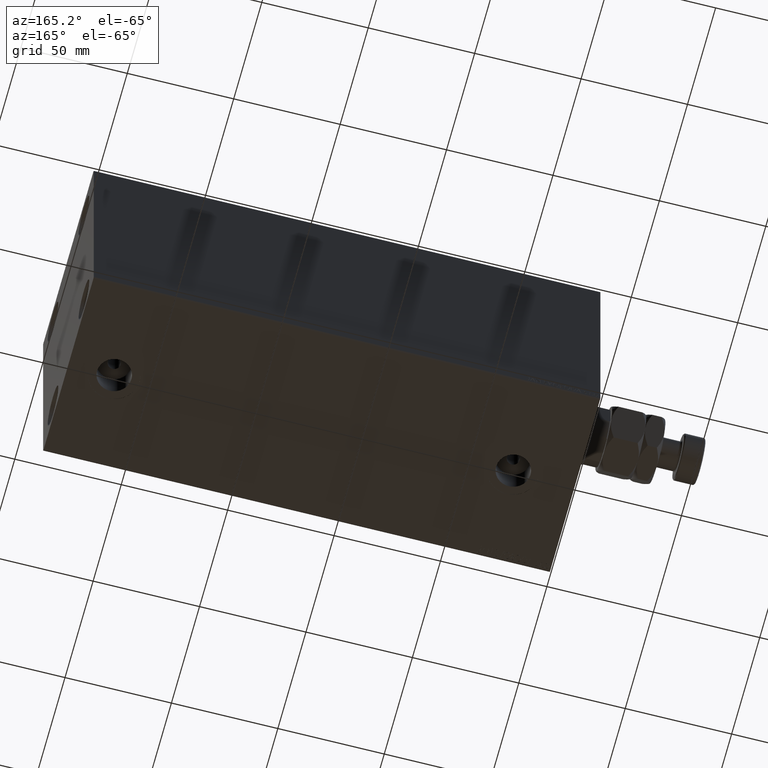
[diagram: clean part render]
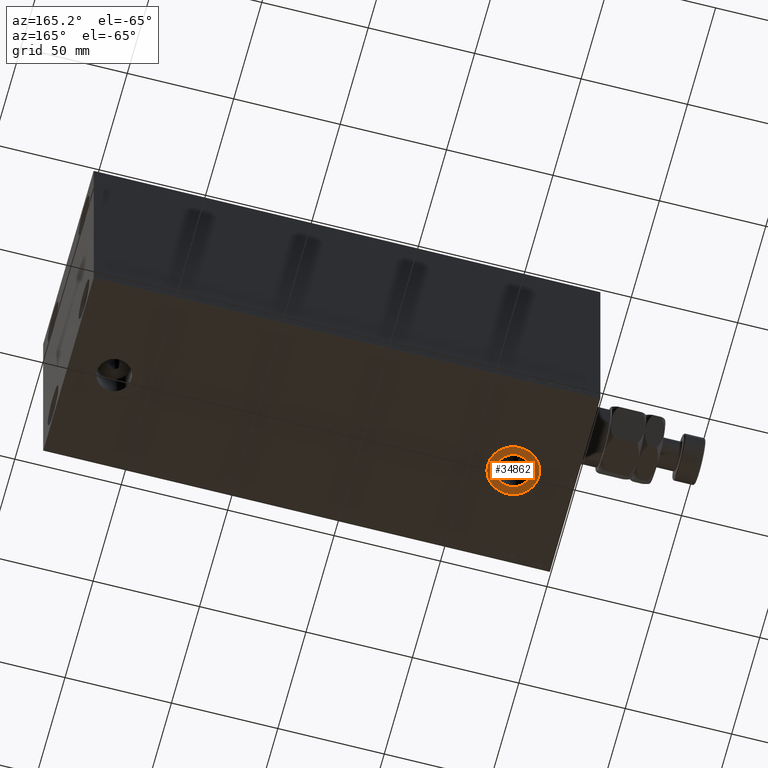
[diagram: same view with one face highlighted and labeled with its STEP entity id]
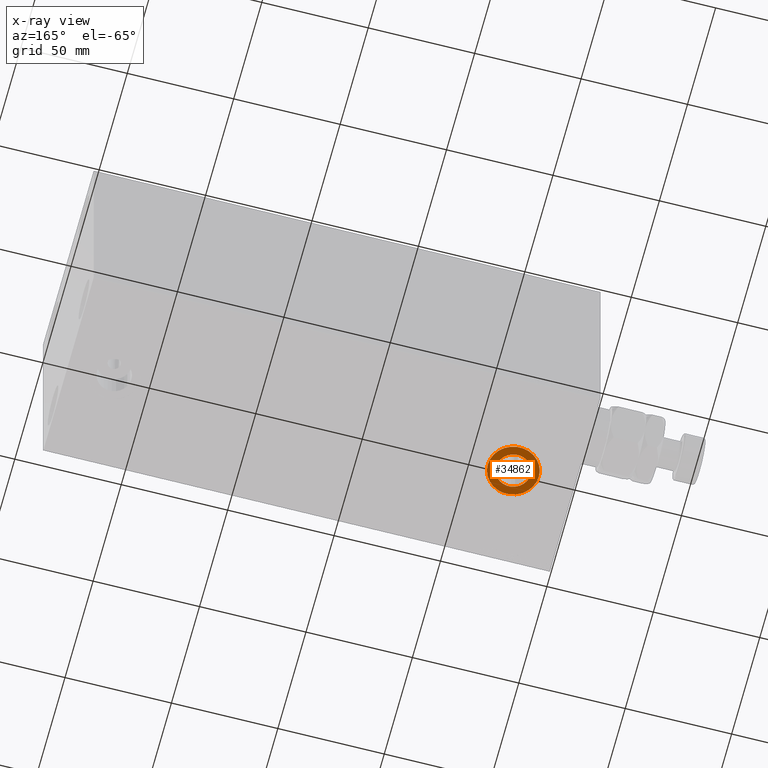
[diagram: x-ray of the same camera — body ghosted, the highlighted face saturated]
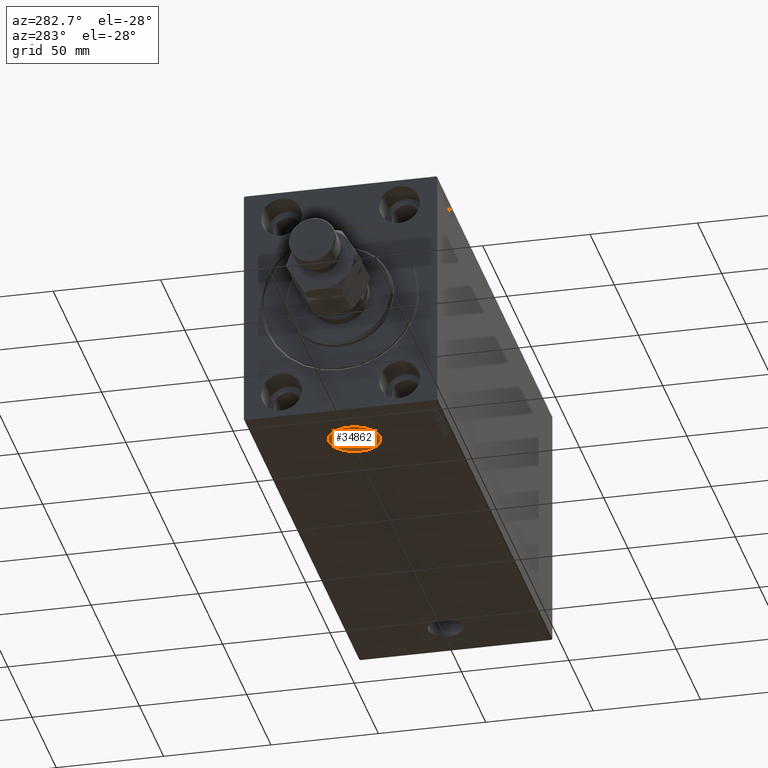
[diagram: same view with one face highlighted and labeled with its STEP entity id]
A machine part, auxiliary view. The second image highlights one B-rep face of the part: STEP entity #34862.
The next image is the same camera in x-ray: the body ghosted, the highlighted face saturated — about 0% of this face is hidden behind the body in this view.
A second angle (auxiliary view) of the same face is appended — the face is thin or edge-on in the first view.
In plain terms, the highlighted planar face has unit normal (0, 0, -1).
Its self-contained STEP definition (entity closure, byte-faithful):
#1558 = CIRCLE ( 'NONE', #40992, 12.00000000000000000 ) ;
#3092 = CARTESIAN_POINT ( 'NONE',  ( 37.08500000000000085, -5.206306226251895314E-15, -57.40000000000000568 ) ) ;
#4489 = VERTEX_POINT ( 'NONE', #20947 ) ;
#5388 = EDGE_LOOP ( 'NONE', ( #17375, #39686 ) ) ;
#7840 = CARTESIAN_POINT ( 'NONE',  ( 29.00000000000000000, -6.196433163362529681E-15, -57.40000000000000568 ) ) ;
#8343 = PLANE ( 'NONE',  #9758 ) ;
#9277 = DIRECTION ( 'NONE',  ( 0.000000000000000000, 0.000000000000000000, -1.000000000000000000 ) ) ;
#9758 = AXIS2_PLACEMENT_3D ( 'NONE', #46074, #9277, #17076 ) ;
#11455 = EDGE_CURVE ( 'NONE', #30275, #42326, #33925, .T. ) ;
#12148 = AXIS2_PLACEMENT_3D ( 'NONE', #7840, #39673, #43474 ) ;
#13979 = CARTESIAN_POINT ( 'NONE',  ( 17.00000000000000000, -6.196433163362529681E-15, -57.40000000000000568 ) ) ;
#14703 = DIRECTION ( 'NONE',  ( 0.000000000000000000, 0.000000000000000000, -1.000000000000000000 ) ) ;
#14811 = VERTEX_POINT ( 'NONE', #13979 ) ;
#15816 = ORIENTED_EDGE ( 'NONE', *, *, #11455, .F. ) ;
#17076 = DIRECTION ( 'NONE',  ( -1.000000000000000000, 0.000000000000000000, -0.000000000000000000 ) ) ;
#17375 = ORIENTED_EDGE ( 'NONE', *, *, #18986, .T. ) ;
#17386 = EDGE_LOOP ( 'NONE', ( #15816, #26313 ) ) ;
#18986 = EDGE_CURVE ( 'NONE', #14811, #4489, #46285, .T. ) ;
#19668 = DIRECTION ( 'NONE',  ( -1.000000000000000000, 0.000000000000000000, 0.000000000000000000 ) ) ;
#20947 = CARTESIAN_POINT ( 'NONE',  ( 41.00000000000000711, -4.726857004385706325E-15, -57.40000000000000568 ) ) ;
#21021 = CARTESIAN_POINT ( 'NONE',  ( 20.91500000000000270, -6.196433163362529681E-15, -57.40000000000000568 ) ) ;
#22987 = DIRECTION ( 'NONE',  ( 0.000000000000000000, 0.000000000000000000, -1.000000000000000000 ) ) ;
#23236 = EDGE_CURVE ( 'NONE', #4489, #14811, #1558, .T. ) ;
#24353 = CIRCLE ( 'NONE', #26744, 8.084999999999999076 ) ;
#26313 = ORIENTED_EDGE ( 'NONE', *, *, #45351, .F. ) ;
#26744 = AXIS2_PLACEMENT_3D ( 'NONE', #43894, #22987, #33189 ) ;
#26800 = DIRECTION ( 'NONE',  ( 0.000000000000000000, 0.000000000000000000, -1.000000000000000000 ) ) ;
#29409 = CARTESIAN_POINT ( 'NONE',  ( 29.00000000000000000, -6.196433163362529681E-15, -57.40000000000000568 ) ) ;
#30275 = VERTEX_POINT ( 'NONE', #21021 ) ;
#30882 = AXIS2_PLACEMENT_3D ( 'NONE', #43507, #26800, #19668 ) ;
#33189 = DIRECTION ( 'NONE',  ( -1.000000000000000000, 0.000000000000000000, 0.000000000000000000 ) ) ;
#33504 = FACE_OUTER_BOUND ( 'NONE', #5388, .T. ) ;
#33925 = CIRCLE ( 'NONE', #30882, 8.084999999999999076 ) ;
#34862 = ADVANCED_FACE ( 'NONE', ( #44209, #33504 ), #8343, .T. ) ;
#36308 = DIRECTION ( 'NONE',  ( -1.000000000000000000, 0.000000000000000000, 0.000000000000000000 ) ) ;
#39673 = DIRECTION ( 'NONE',  ( 0.000000000000000000, 0.000000000000000000, -1.000000000000000000 ) ) ;
#39686 = ORIENTED_EDGE ( 'NONE', *, *, #23236, .T. ) ;
#40992 = AXIS2_PLACEMENT_3D ( 'NONE', #29409, #14703, #36308 ) ;
#42326 = VERTEX_POINT ( 'NONE', #3092 ) ;
#43474 = DIRECTION ( 'NONE',  ( -1.000000000000000000, 0.000000000000000000, 0.000000000000000000 ) ) ;
#43507 = CARTESIAN_POINT ( 'NONE',  ( 29.00000000000000000, -6.196433163362529681E-15, -57.40000000000000568 ) ) ;
#43894 = CARTESIAN_POINT ( 'NONE',  ( 29.00000000000000000, -6.196433163362529681E-15, -57.40000000000000568 ) ) ;
#44209 = FACE_BOUND ( 'NONE', #17386, .T. ) ;
#45351 = EDGE_CURVE ( 'NONE', #42326, #30275, #24353, .T. ) ;
#46074 = CARTESIAN_POINT ( 'NONE',  ( 0.000000000000000000, 0.000000000000000000, -57.40000000000000568 ) ) ;
#46285 = CIRCLE ( 'NONE', #12148, 12.00000000000000000 ) ;